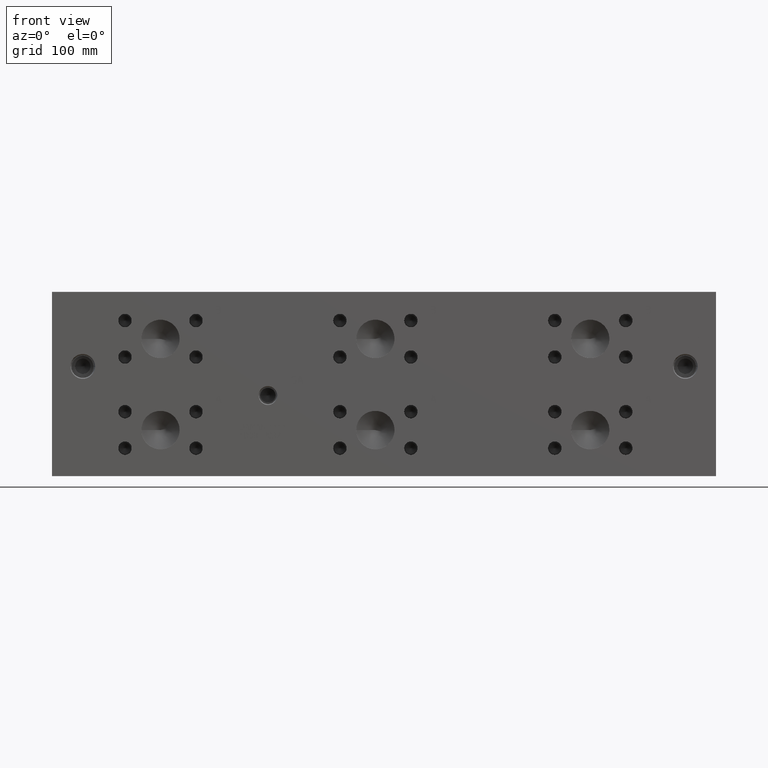
[diagram: clean part render]
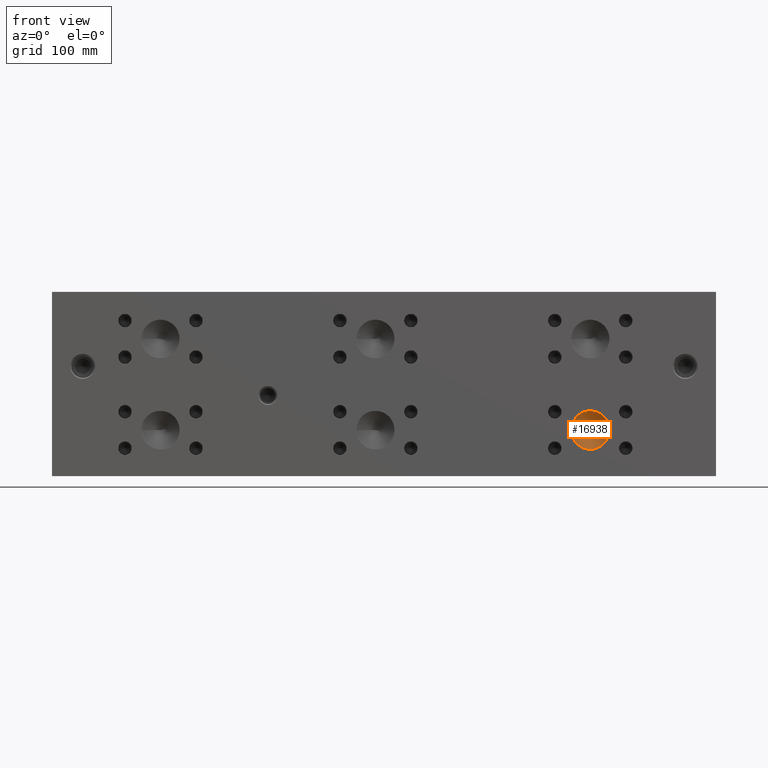
[diagram: same view with one face highlighted and labeled with its STEP entity id]
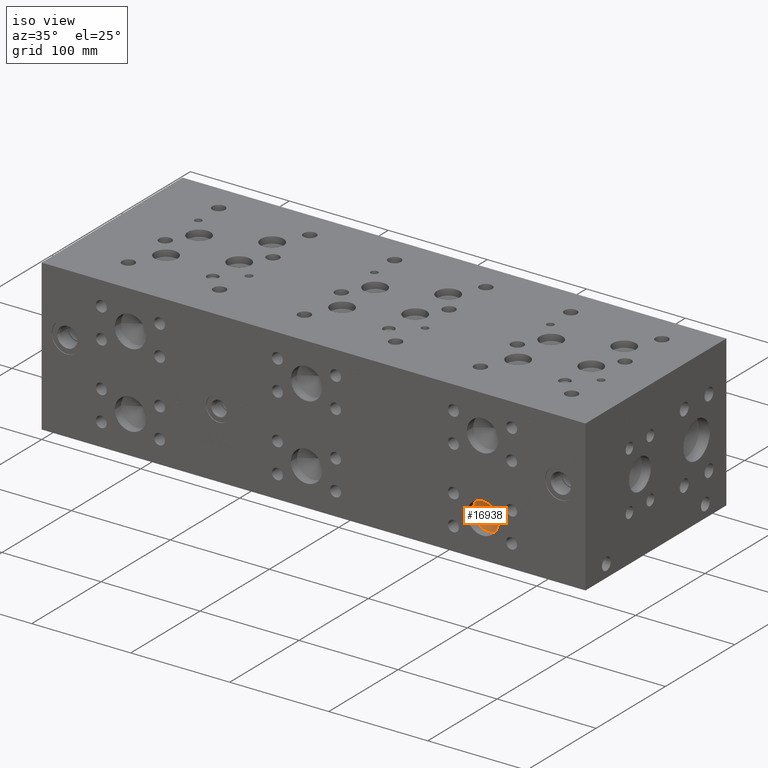
[diagram: same view with one face highlighted and labeled with its STEP entity id]
A machine part, front view. The second image highlights one B-rep face of the part: STEP entity #16938.
A second angle (iso view) of the same face is appended — the face is thin or edge-on in the first view.
In plain terms, the highlighted conical surface has half-angle 60 deg.
Its self-contained STEP definition (entity closure, byte-faithful):
#252=CONICAL_SURFACE('',#18145,7.9375,1.0471975511966);
#752=CIRCLE('',#18146,15.875);
#753=CIRCLE('',#18147,15.875);
#2339=FACE_OUTER_BOUND('',#3382,.T.);
#3382=EDGE_LOOP('',(#14834,#14835,#14836,#14837));
#4899=LINE('',#28976,#6325);
#6325=VECTOR('',#21891,7.9375);
#8245=VERTEX_POINT('',#28972);
#8246=VERTEX_POINT('',#28973);
#8247=VERTEX_POINT('',#28975);
#10535=EDGE_CURVE('',#8245,#8246,#752,.T.);
#10536=EDGE_CURVE('',#8246,#8247,#4899,.T.);
#10537=EDGE_CURVE('',#8246,#8245,#753,.T.);
#14834=ORIENTED_EDGE('',*,*,#10535,.T.);
#14835=ORIENTED_EDGE('',*,*,#10536,.T.);
#14836=ORIENTED_EDGE('',*,*,#10536,.F.);
#14837=ORIENTED_EDGE('',*,*,#10537,.T.);
#16938=ADVANCED_FACE('',(#2339),#252,.F.);
#18145=AXIS2_PLACEMENT_3D('',#28971,#21887,#21888);
#18146=AXIS2_PLACEMENT_3D('',#28974,#21889,#21890);
#18147=AXIS2_PLACEMENT_3D('',#28977,#21892,#21893);
#21887=DIRECTION('center_axis',(0.,-1.,0.));
#21888=DIRECTION('ref_axis',(1.,0.,0.));
#21889=DIRECTION('center_axis',(0.,-1.,0.));
#21890=DIRECTION('ref_axis',(1.,0.,0.));
#21891=DIRECTION('',(0.866025403784439,0.5,1.06057523872491E-16));
#21892=DIRECTION('center_axis',(0.,-1.,0.));
#21893=DIRECTION('ref_axis',(1.,0.,0.));
#28971=CARTESIAN_POINT('Origin',(445.2874,13.7481577616927,38.1));
#28972=CARTESIAN_POINT('',(461.1624,9.16544,38.1));
#28973=CARTESIAN_POINT('',(429.4124,9.16544,38.1));
#28974=CARTESIAN_POINT('Origin',(445.2874,9.16544,38.1));
#28975=CARTESIAN_POINT('',(445.2874,18.3308755233853,38.1));
#28976=CARTESIAN_POINT('',(437.3499,13.7481577616927,38.1));
#28977=CARTESIAN_POINT('Origin',(445.2874,9.16544,38.1));